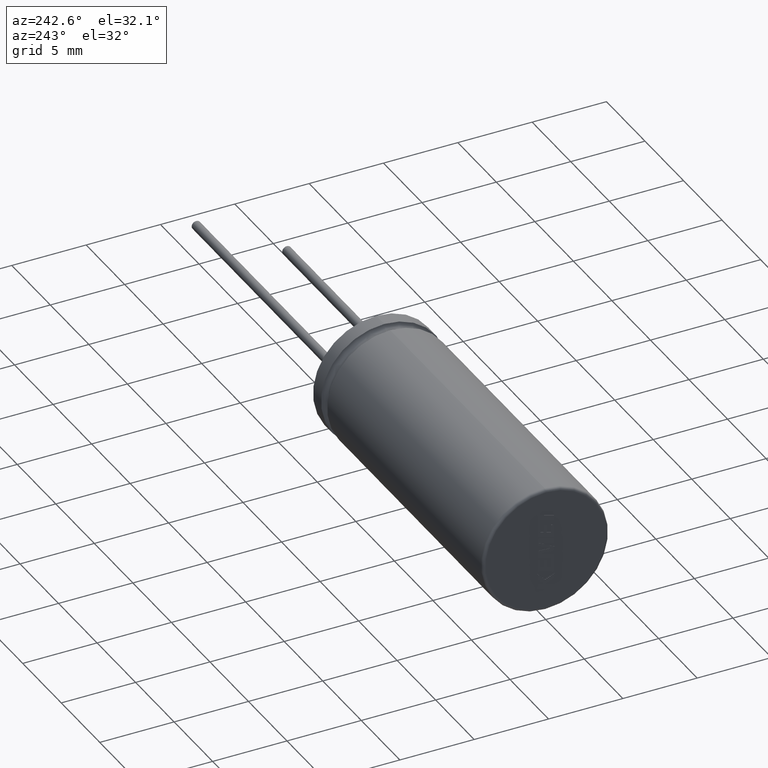
[diagram: clean part render]
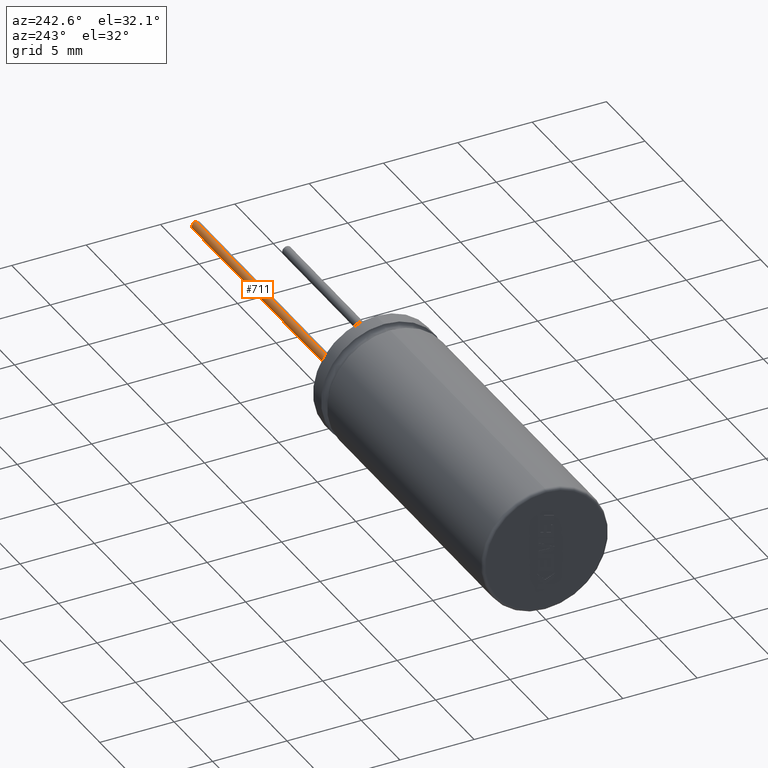
[diagram: same view with one face highlighted and labeled with its STEP entity id]
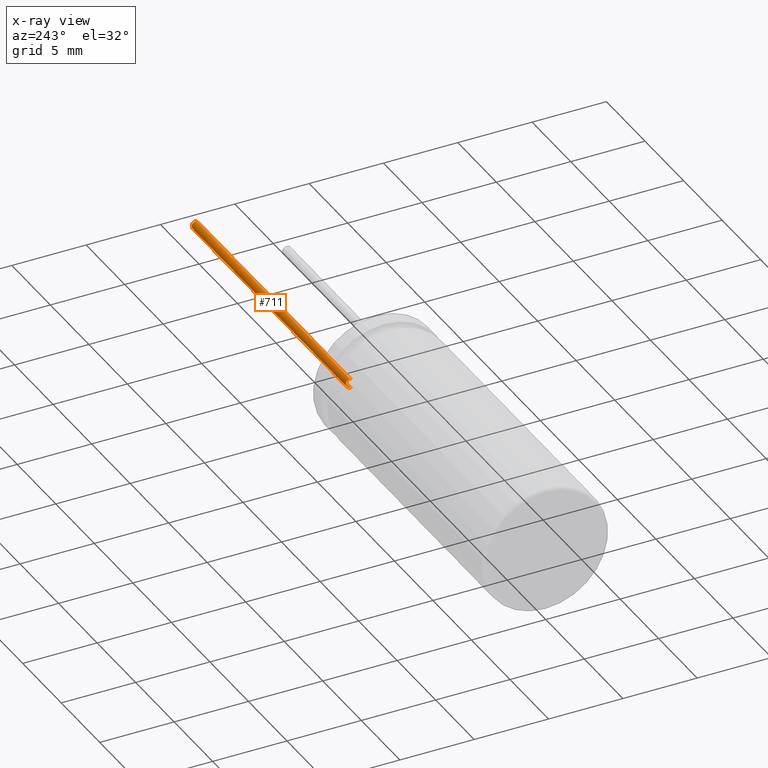
[diagram: x-ray of the same camera — body ghosted, the highlighted face saturated]
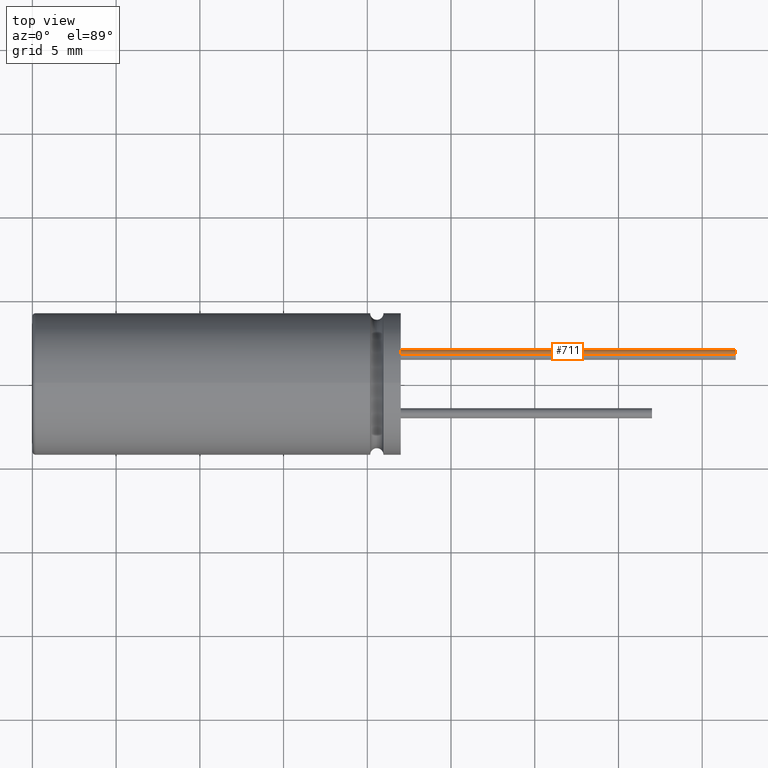
[diagram: same view with one face highlighted and labeled with its STEP entity id]
A machine part, auxiliary view. The second image highlights one B-rep face of the part: STEP entity #711.
The next image is the same camera in x-ray: the body ghosted, the highlighted face saturated — about 0% of this face is hidden behind the body in this view.
A second angle (top view) of the same face is appended — the face is thin or edge-on in the first view.
In plain terms, the highlighted cylindrical surface (edge-blend (fillet) strip) has radius 0.3 mm, axis along (-1, -0, -0).
Its self-contained STEP definition (entity closure, byte-faithful):
#31 = FACE_OUTER_BOUND ( 'NONE', #232, .T. ) ;
#59 = DIRECTION ( 'NONE',  ( 1.000000000000000000, 0.0000000000000000000, 0.0000000000000000000 ) ) ;
#85 = AXIS2_PLACEMENT_3D ( 'NONE', #1721, #2547, #1473 ) ;
#163 = CARTESIAN_POINT ( 'NONE',  ( 22.00000000000000000, 1.750000000000000000, -0.3000000000000000400 ) ) ;
#196 = ORIENTED_EDGE ( 'NONE', *, *, #449, .T. ) ;
#232 = EDGE_LOOP ( 'NONE', ( #538, #1258, #196, #1179 ) ) ;
#271 = VECTOR ( 'NONE', #3157, 1000.000000000000000 ) ;
#327 = CIRCLE ( 'NONE', #1030, 0.3000000000000000400 ) ;
#380 = CARTESIAN_POINT ( 'NONE',  ( 22.00000000000000000, 1.750000000000000000, 0.3000000000000000400 ) ) ;
#449 = EDGE_CURVE ( 'NONE', #2144, #3119, #1747, .T. ) ;
#489 = VERTEX_POINT ( 'NONE', #1424 ) ;
#538 = ORIENTED_EDGE ( 'NONE', *, *, #2227, .F. ) ;
#697 = EDGE_CURVE ( 'NONE', #489, #3119, #1022, .T. ) ;
#711 = ADVANCED_FACE ( 'NONE', ( #31 ), #3324, .T. ) ;
#824 = CARTESIAN_POINT ( 'NONE',  ( 41.99999999999999300, 1.750000000000000000, 0.0000000000000000000 ) ) ;
#1022 = LINE ( 'NONE', #1449, #1452 ) ;
#1030 = AXIS2_PLACEMENT_3D ( 'NONE', #824, #3136, #2880 ) ;
#1097 = LINE ( 'NONE', #2603, #271 ) ;
#1138 = CARTESIAN_POINT ( 'NONE',  ( 41.99999999999999300, 1.750000000000000000, -0.3000000000000000400 ) ) ;
#1179 = ORIENTED_EDGE ( 'NONE', *, *, #697, .F. ) ;
#1258 = ORIENTED_EDGE ( 'NONE', *, *, #2946, .T. ) ;
#1424 = CARTESIAN_POINT ( 'NONE',  ( 41.99999999999999300, 1.750000000000000000, 0.3000000000000000400 ) ) ;
#1449 = CARTESIAN_POINT ( 'NONE',  ( 41.99999999999999300, 1.750000000000000000, 0.3000000000000000400 ) ) ;
#1452 = VECTOR ( 'NONE', #3050, 1000.000000000000000 ) ;
#1473 = DIRECTION ( 'NONE',  ( 0.0000000000000000000, 0.0000000000000000000, 1.000000000000000000 ) ) ;
#1532 = VERTEX_POINT ( 'NONE', #1138 ) ;
#1614 = CARTESIAN_POINT ( 'NONE',  ( 22.00000000000000000, 1.750000000000000000, 0.0000000000000000000 ) ) ;
#1721 = CARTESIAN_POINT ( 'NONE',  ( 41.99999999999999300, 1.750000000000000000, 0.0000000000000000000 ) ) ;
#1747 = CIRCLE ( 'NONE', #2128, 0.3000000000000000400 ) ;
#1892 = DIRECTION ( 'NONE',  ( 0.0000000000000000000, 0.0000000000000000000, -1.000000000000000000 ) ) ;
#2128 = AXIS2_PLACEMENT_3D ( 'NONE', #1614, #59, #1892 ) ;
#2144 = VERTEX_POINT ( 'NONE', #163 ) ;
#2227 = EDGE_CURVE ( 'NONE', #1532, #489, #327, .T. ) ;
#2547 = DIRECTION ( 'NONE',  ( -1.000000000000000000, -0.0000000000000000000, -0.0000000000000000000 ) ) ;
#2603 = CARTESIAN_POINT ( 'NONE',  ( 41.99999999999999300, 1.750000000000000000, -0.3000000000000000400 ) ) ;
#2880 = DIRECTION ( 'NONE',  ( 0.0000000000000000000, 0.0000000000000000000, -1.000000000000000000 ) ) ;
#2946 = EDGE_CURVE ( 'NONE', #1532, #2144, #1097, .T. ) ;
#3050 = DIRECTION ( 'NONE',  ( -1.000000000000000000, -0.0000000000000000000, -0.0000000000000000000 ) ) ;
#3119 = VERTEX_POINT ( 'NONE', #380 ) ;
#3136 = DIRECTION ( 'NONE',  ( 1.000000000000000000, 0.0000000000000000000, 0.0000000000000000000 ) ) ;
#3157 = DIRECTION ( 'NONE',  ( -1.000000000000000000, -0.0000000000000000000, -0.0000000000000000000 ) ) ;
#3324 = CYLINDRICAL_SURFACE ( 'NONE', #85, 0.3000000000000000400 ) ;